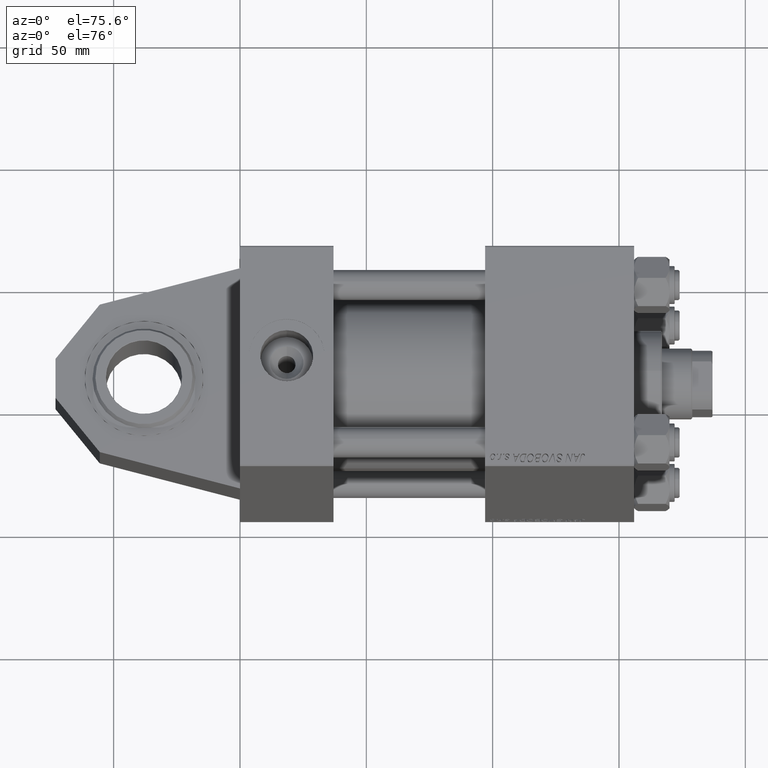
[diagram: clean part render]
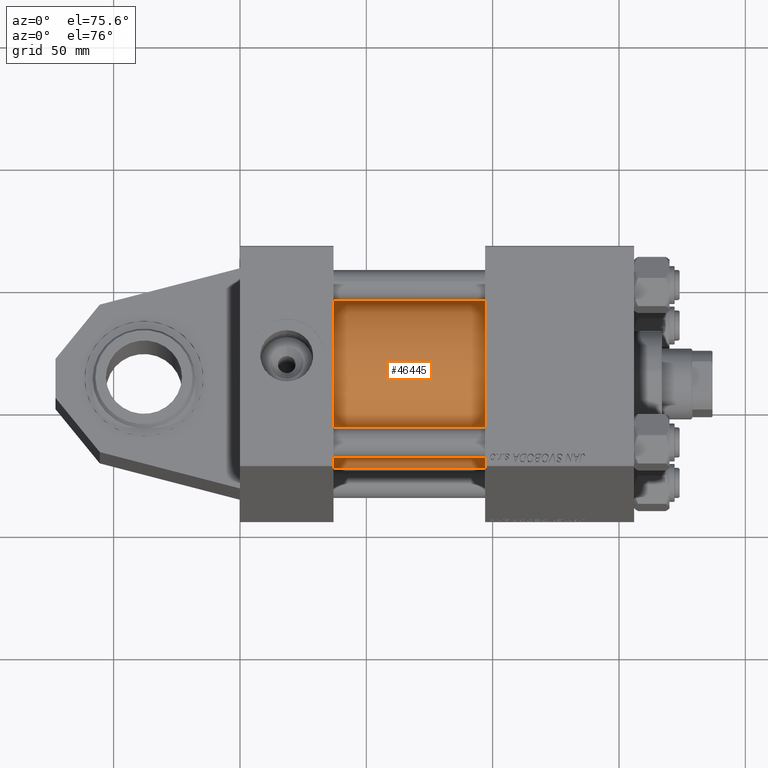
[diagram: same view with one face highlighted and labeled with its STEP entity id]
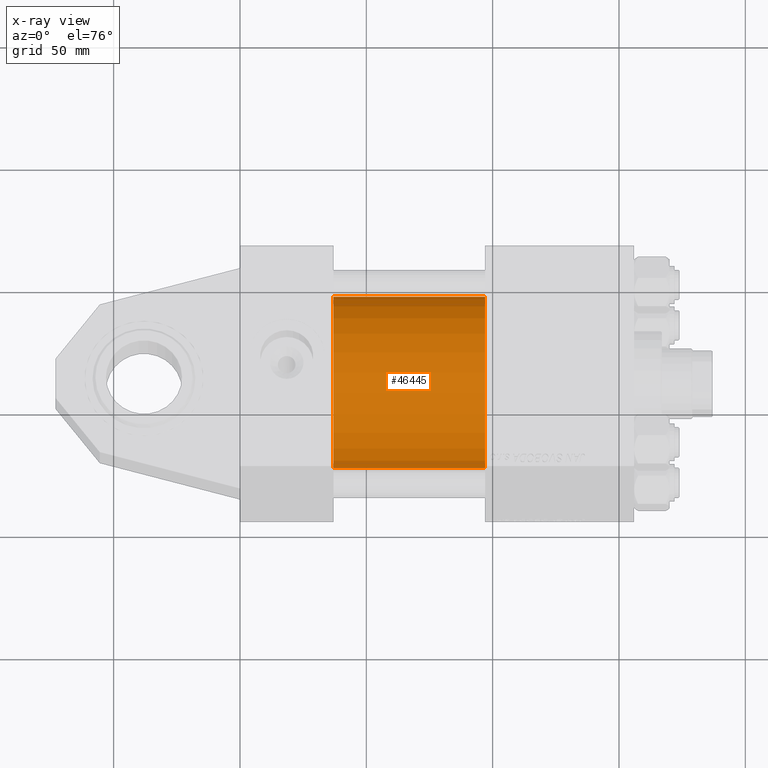
[diagram: x-ray of the same camera — body ghosted, the highlighted face saturated]
A machine part, auxiliary view. The second image highlights one B-rep face of the part: STEP entity #46445.
The next image is the same camera in x-ray: the body ghosted, the highlighted face saturated — about 0% of this face is hidden behind the body in this view.
In plain terms, the highlighted cylindrical surface (partial cylindrical patch) has radius 34.5 mm, axis along (-1, 0, -0).
Its self-contained STEP definition (entity closure, byte-faithful):
#485 = DIRECTION ( 'NONE',  ( 1.000000000000000000, -0.000000000000000000, 0.000000000000000000 ) ) ;
#2460 = VECTOR ( 'NONE', #17605, 1000.000000000000000 ) ;
#3813 = DIRECTION ( 'NONE',  ( 0.000000000000000000, 0.000000000000000000, 1.000000000000000000 ) ) ;
#5283 = DIRECTION ( 'NONE',  ( 0.000000000000000000, 0.000000000000000000, 1.000000000000000000 ) ) ;
#5713 = EDGE_CURVE ( 'NONE', #32748, #37068, #18610, .T. ) ;
#6440 = CIRCLE ( 'NONE', #34833, 34.50000000000000000 ) ;
#6873 = EDGE_LOOP ( 'NONE', ( #43409, #12991, #28241, #9907 ) ) ;
#7510 = DIRECTION ( 'NONE',  ( 1.000000000000000000, 0.000000000000000000, 0.000000000000000000 ) ) ;
#8134 = CARTESIAN_POINT ( 'NONE',  ( 97.00000000000000000, -2.602085213965210642E-15, 0.000000000000000000 ) ) ;
#9907 = ORIENTED_EDGE ( 'NONE', *, *, #5713, .F. ) ;
#11074 = DIRECTION ( 'NONE',  ( 0.000000000000000000, 0.000000000000000000, -1.000000000000000000 ) ) ;
#11692 = CYLINDRICAL_SURFACE ( 'NONE', #40507, 34.50000000000000000 ) ;
#12991 = ORIENTED_EDGE ( 'NONE', *, *, #45882, .T. ) ;
#13698 = EDGE_CURVE ( 'NONE', #41923, #37068, #43144, .T. ) ;
#13712 = VECTOR ( 'NONE', #44039, 1000.000000000000000 ) ;
#17605 = DIRECTION ( 'NONE',  ( -1.000000000000000000, -0.000000000000000000, -0.000000000000000000 ) ) ;
#17876 = CARTESIAN_POINT ( 'NONE',  ( 97.00000000000000000, 1.622946243093158675E-15, -34.50000000000000000 ) ) ;
#18610 = LINE ( 'NONE', #48340, #2460 ) ;
#22133 = CARTESIAN_POINT ( 'NONE',  ( 97.00000000000000000, -2.602085213965210642E-15, 34.50000000000000000 ) ) ;
#26680 = CARTESIAN_POINT ( 'NONE',  ( 97.00000000000000000, 1.622946243093158675E-15, -34.50000000000000000 ) ) ;
#28241 = ORIENTED_EDGE ( 'NONE', *, *, #13698, .T. ) ;
#29310 = LINE ( 'NONE', #17876, #13712 ) ;
#31756 = DIRECTION ( 'NONE',  ( -1.000000000000000000, -0.000000000000000000, -0.000000000000000000 ) ) ;
#32098 = VERTEX_POINT ( 'NONE', #26680 ) ;
#32748 = VERTEX_POINT ( 'NONE', #22133 ) ;
#34833 = AXIS2_PLACEMENT_3D ( 'NONE', #45864, #7510, #11074 ) ;
#35289 = CARTESIAN_POINT ( 'NONE',  ( 37.00000000000000000, -2.602085213965210642E-15, 0.000000000000000000 ) ) ;
#37068 = VERTEX_POINT ( 'NONE', #44004 ) ;
#39112 = FACE_OUTER_BOUND ( 'NONE', #6873, .T. ) ;
#40507 = AXIS2_PLACEMENT_3D ( 'NONE', #8134, #31756, #3813 ) ;
#41923 = VERTEX_POINT ( 'NONE', #47670 ) ;
#42140 = EDGE_CURVE ( 'NONE', #32098, #32748, #6440, .T. ) ;
#43144 = CIRCLE ( 'NONE', #47212, 34.50000000000000000 ) ;
#43409 = ORIENTED_EDGE ( 'NONE', *, *, #42140, .F. ) ;
#44004 = CARTESIAN_POINT ( 'NONE',  ( 37.00000000000000000, -2.602085213965210642E-15, 34.50000000000000000 ) ) ;
#44039 = DIRECTION ( 'NONE',  ( -1.000000000000000000, -0.000000000000000000, -0.000000000000000000 ) ) ;
#45864 = CARTESIAN_POINT ( 'NONE',  ( 97.00000000000000000, -2.602085213965210642E-15, 0.000000000000000000 ) ) ;
#45882 = EDGE_CURVE ( 'NONE', #32098, #41923, #29310, .T. ) ;
#46445 = ADVANCED_FACE ( 'NONE', ( #39112 ), #11692, .T. ) ;
#47212 = AXIS2_PLACEMENT_3D ( 'NONE', #35289, #485, #5283 ) ;
#47670 = CARTESIAN_POINT ( 'NONE',  ( 37.00000000000000000, 1.622946243093158675E-15, -34.50000000000000000 ) ) ;
#48340 = CARTESIAN_POINT ( 'NONE',  ( 97.00000000000000000, -2.602085213965210642E-15, 34.50000000000000000 ) ) ;